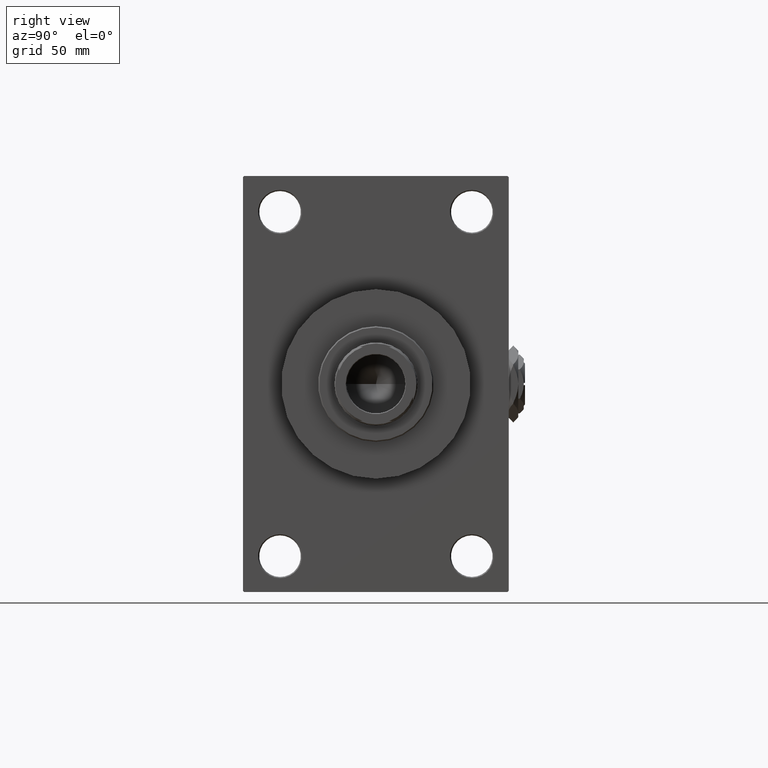
[diagram: clean part render]
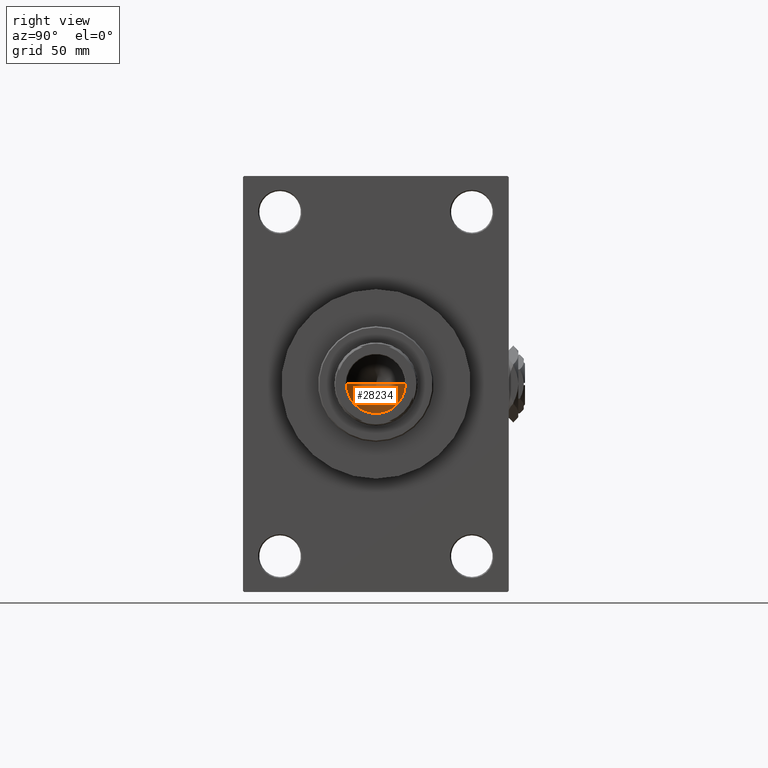
[diagram: same view with one face highlighted and labeled with its STEP entity id]
A machine part, right view. The second image highlights one B-rep face of the part: STEP entity #28234.
In plain terms, the highlighted conical surface has half-angle 59 deg.
Its self-contained STEP definition (entity closure, byte-faithful):
#2879 = DIRECTION ( 'NONE',  ( 0.8571673007021117785, 0.000000000000000000, 0.5150380749100550437 ) ) ;
#4357 = DIRECTION ( 'NONE',  ( 1.000000000000000000, 0.000000000000000000, 0.000000000000000000 ) ) ;
#4674 = DIRECTION ( 'NONE',  ( 1.000000000000000000, 0.000000000000000000, 0.000000000000000000 ) ) ;
#5033 = CARTESIAN_POINT ( 'NONE',  ( -1.410643066818227497E-14, 0.000000000000000000, 113.3390271073986071 ) ) ;
#6894 = AXIS2_PLACEMENT_3D ( 'NONE', #37959, #45490, #4357 ) ;
#11520 = VERTEX_POINT ( 'NONE', #5033 ) ;
#11816 = EDGE_CURVE ( 'NONE', #11520, #15797, #25557, .T. ) ;
#12867 = VECTOR ( 'NONE', #2879, 1000.000000000000000 ) ;
#15797 = VERTEX_POINT ( 'NONE', #26492 ) ;
#16550 = CONICAL_SURFACE ( 'NONE', #6894, 12.74999999999998934, 1.029744258676653423 ) ;
#18811 = DIRECTION ( 'NONE',  ( -0.8571673007021117785, 1.049727191138617956E-16, 0.5150380749100550437 ) ) ;
#19050 = CARTESIAN_POINT ( 'NONE',  ( -12.74999999999998934, 1.561424668912873928E-15, 121.0000000000000142 ) ) ;
#19528 = ORIENTED_EDGE ( 'NONE', *, *, #25669, .T. ) ;
#19780 = CARTESIAN_POINT ( 'NONE',  ( 0.000000000000000000, 0.000000000000000000, 121.0000000000000142 ) ) ;
#20268 = EDGE_LOOP ( 'NONE', ( #25119, #42524, #19528 ) ) ;
#22605 = LINE ( 'NONE', #19050, #31393 ) ;
#25119 = ORIENTED_EDGE ( 'NONE', *, *, #42076, .F. ) ;
#25557 = LINE ( 'NONE', #37395, #12867 ) ;
#25669 = EDGE_CURVE ( 'NONE', #15797, #41190, #34963, .T. ) ;
#26492 = CARTESIAN_POINT ( 'NONE',  ( 12.74999999999998934, 0.000000000000000000, 121.0000000000000142 ) ) ;
#28234 = ADVANCED_FACE ( 'NONE', ( #38897 ), #16550, .F. ) ;
#31393 = VECTOR ( 'NONE', #18811, 1000.000000000000000 ) ;
#34963 = CIRCLE ( 'NONE', #36580, 12.74999999999998934 ) ;
#36580 = AXIS2_PLACEMENT_3D ( 'NONE', #19780, #39204, #4674 ) ;
#37395 = CARTESIAN_POINT ( 'NONE',  ( 12.74999999999998934, 0.000000000000000000, 121.0000000000000142 ) ) ;
#37959 = CARTESIAN_POINT ( 'NONE',  ( 0.000000000000000000, 0.000000000000000000, 121.0000000000000142 ) ) ;
#38897 = FACE_OUTER_BOUND ( 'NONE', #20268, .T. ) ;
#39204 = DIRECTION ( 'NONE',  ( -0.000000000000000000, -0.000000000000000000, 1.000000000000000000 ) ) ;
#40645 = CARTESIAN_POINT ( 'NONE',  ( -12.74999999999998934, 1.561424668912873928E-15, 121.0000000000000142 ) ) ;
#41190 = VERTEX_POINT ( 'NONE', #40645 ) ;
#42076 = EDGE_CURVE ( 'NONE', #11520, #41190, #22605, .T. ) ;
#42524 = ORIENTED_EDGE ( 'NONE', *, *, #11816, .T. ) ;
#45490 = DIRECTION ( 'NONE',  ( -0.000000000000000000, -0.000000000000000000, 1.000000000000000000 ) ) ;